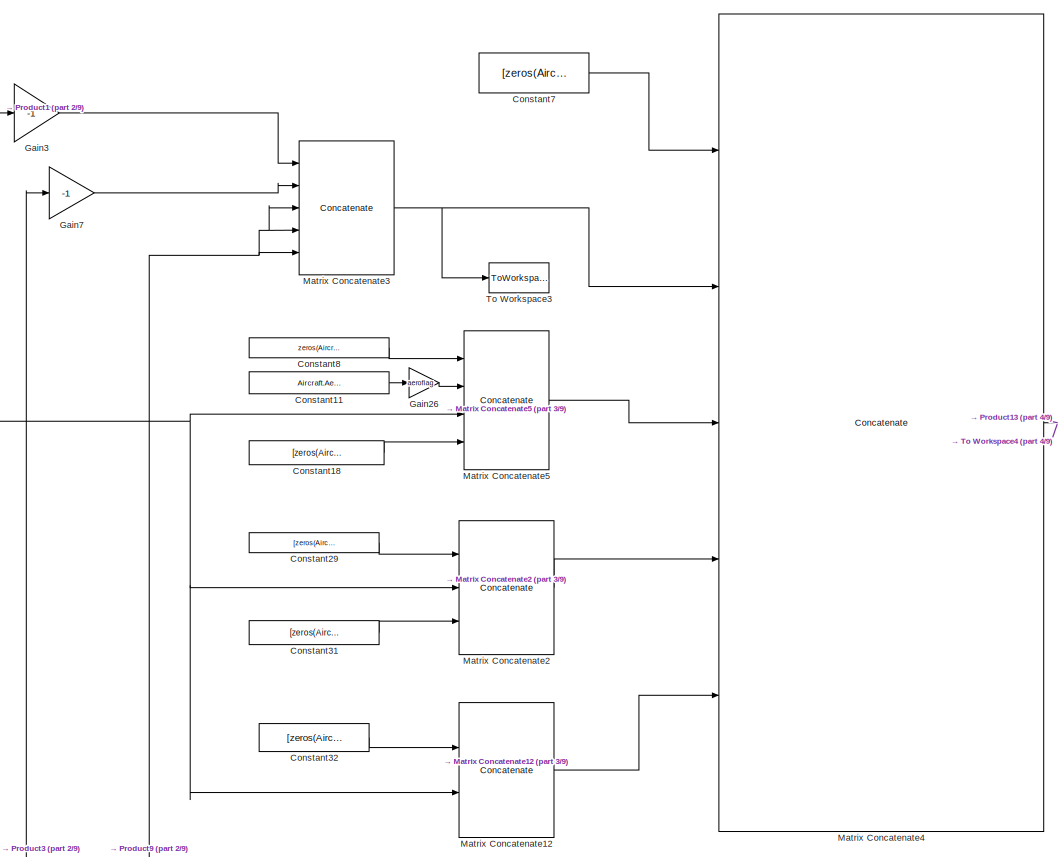
[diagram: root canvas - part 1/9, top center region]
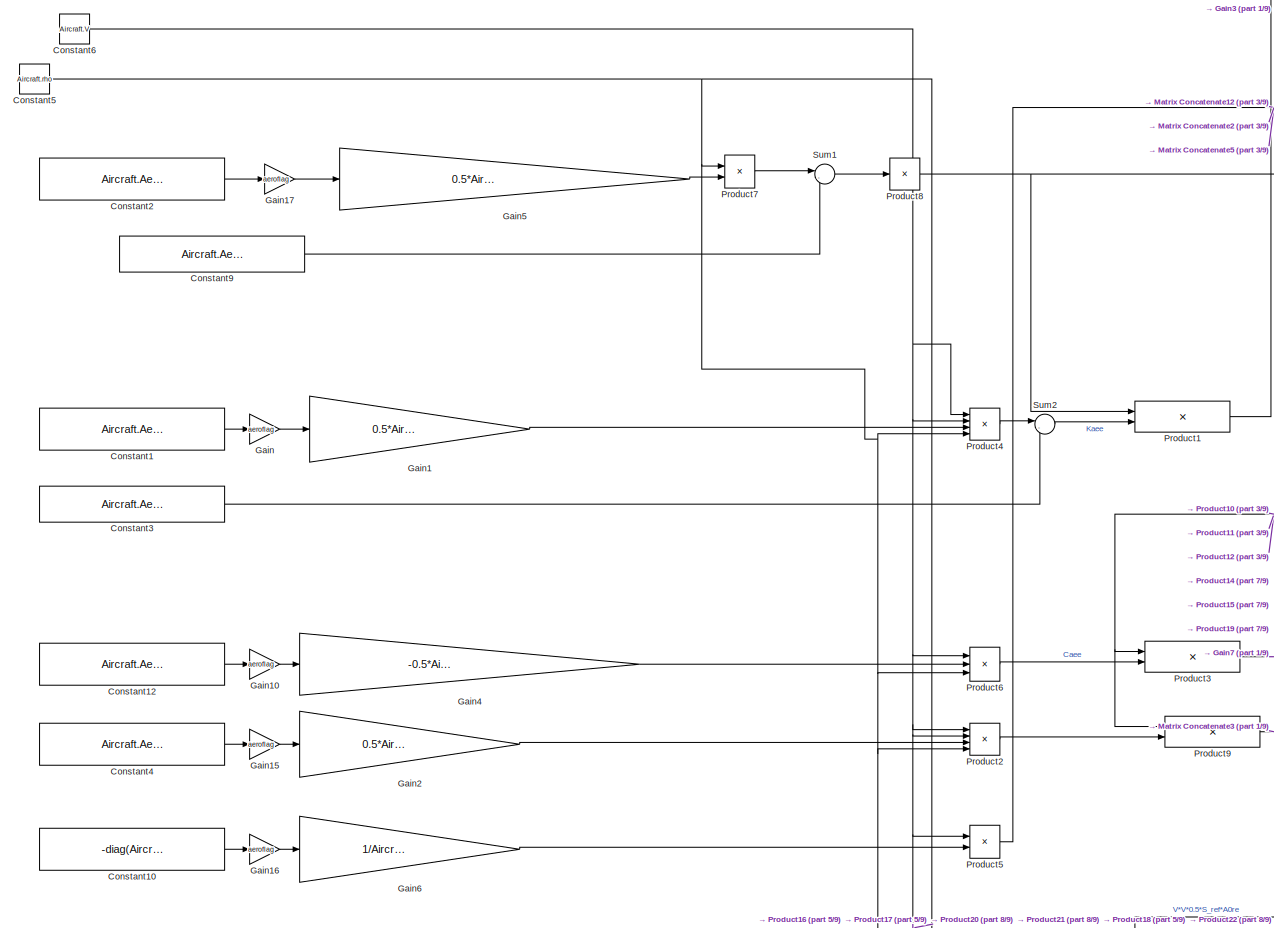
[diagram: root canvas - part 2/9, top left region]
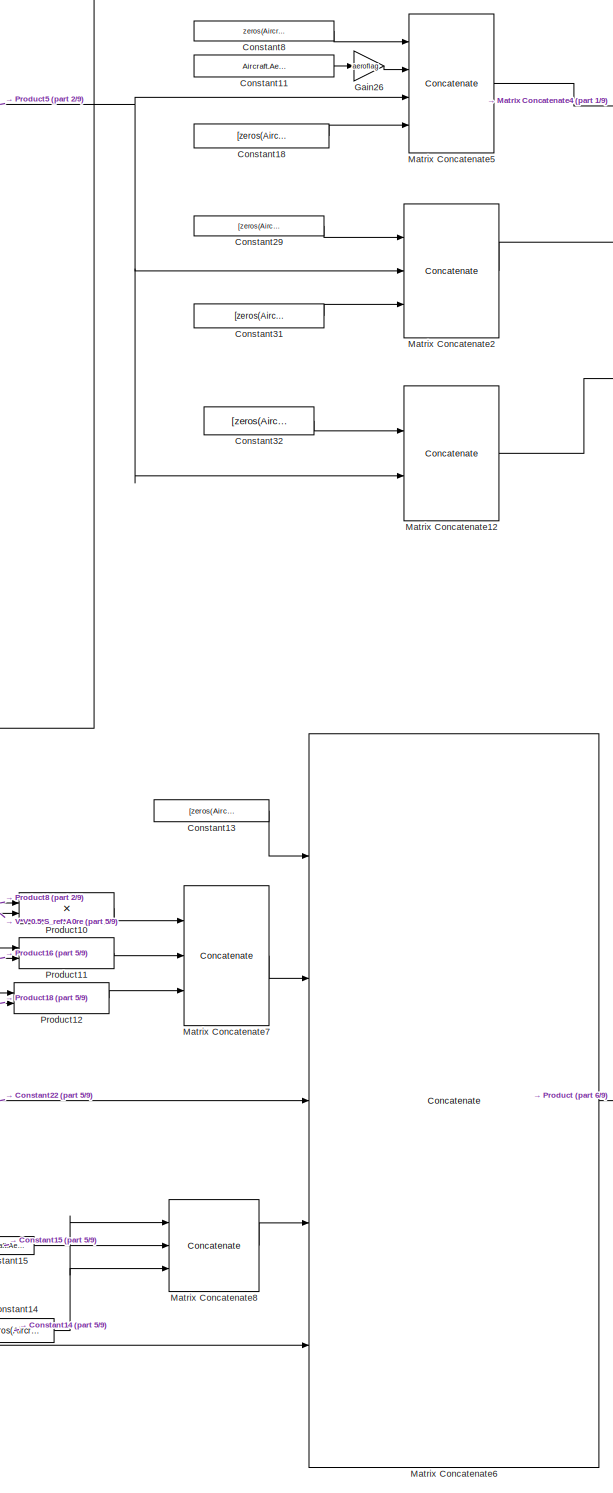
[diagram: root canvas - part 3/9, top center region]
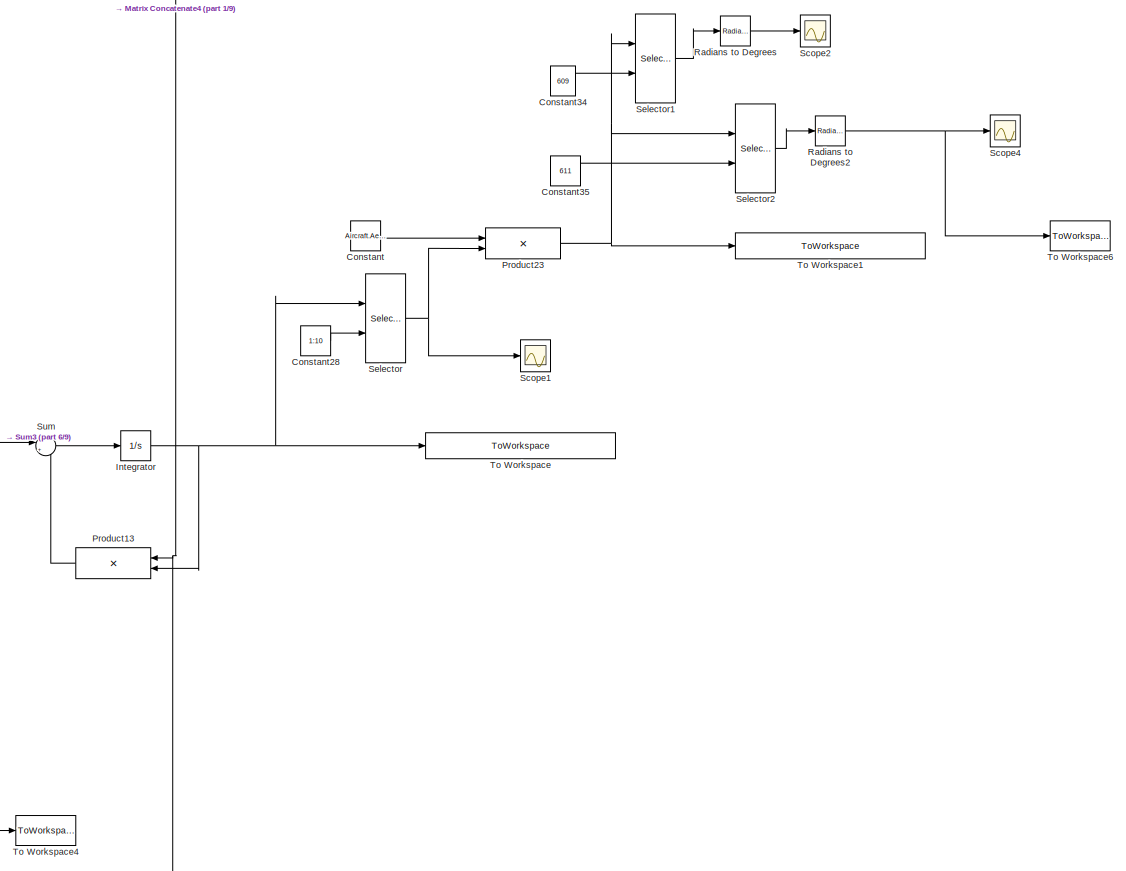
[diagram: root canvas - part 4/9, middle right region]
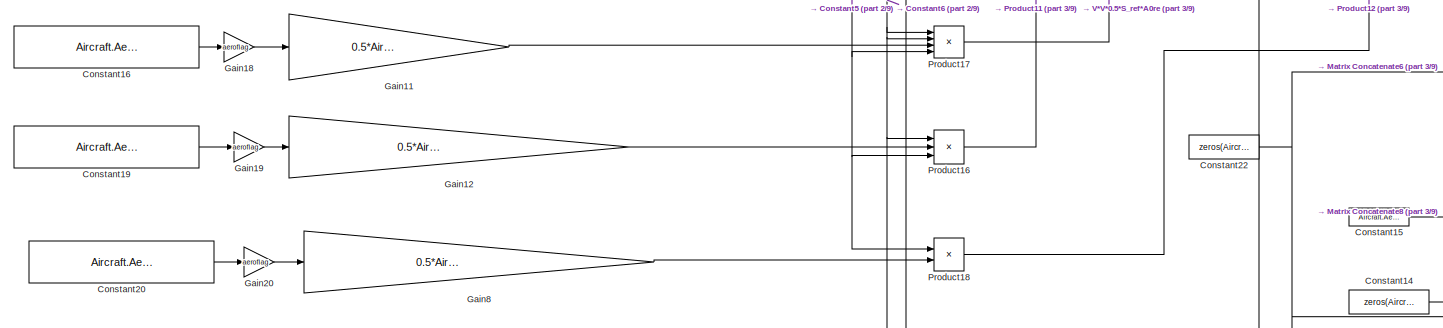
[diagram: root canvas - part 5/9, middle left region]
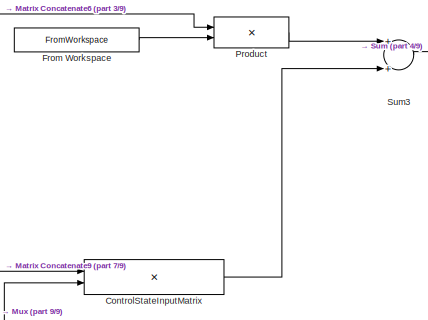
[diagram: root canvas - part 6/9, middle right region]
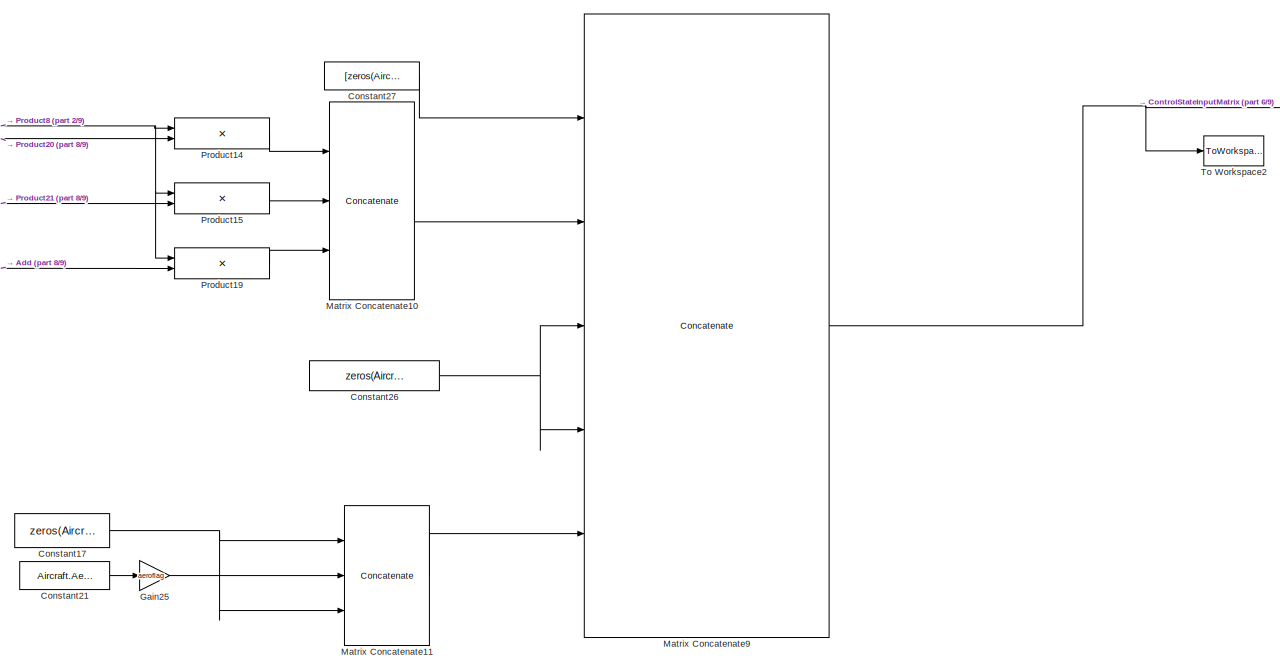
[diagram: root canvas - part 7/9, bottom center region]
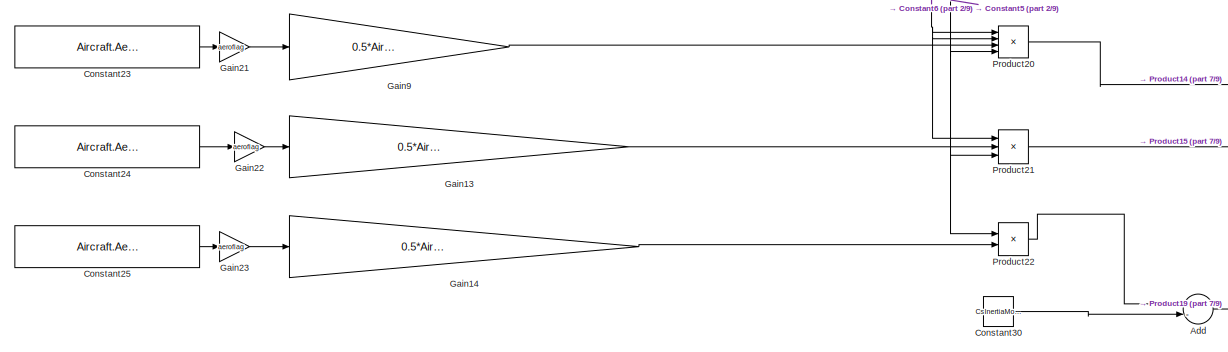
[diagram: root canvas - part 8/9, middle left region]
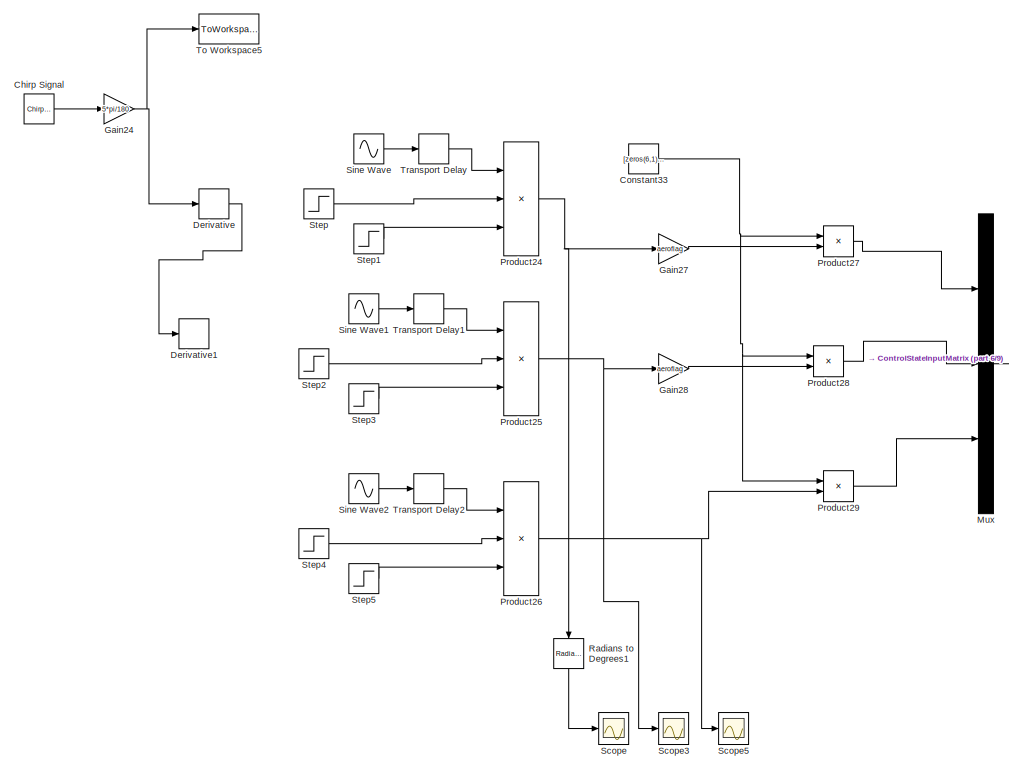
[diagram: root canvas - part 9/9, bottom center region]
MODEL slx_2d050b5bb379
KIND model
CONFIG AbsTol = 0.01
CONFIG FixedStep = 0.001
CONFIG MaxStep = auto
CONFIG MinStep = auto
CONFIG RelTol = 1e-12
CONFIG SampleTimeConstraint = Unconstrained
CONFIG Solver = ode3
CONFIG SolverMode = Auto
CONFIG SolverName = ode3
CONFIG StartTime = 0.0
CONFIG StopTime = 10
BLOCK [Sum] Add
  InputSameDT = off
  Inputs = +-
  OutDataTypeStr = Inherit: Inherit via internal rule
  Ports = [2, 1]
  SaturateOnIntegerOverflow = off
BLOCK [Reference] Chirp Signal  REF=simulink/Sources/Chirp Signal
  Ports = [0, 1]
  SourceBlock = simulink/Sources/Chirp Signal
  SourceType = chirp
BLOCK [Constant] Constant
  Value = Aircraft.AeroelasticSSM.modeshapes
BLOCK [Constant] Constant1
  Value = Aircraft.AeroelasticSSM.A0ee
BLOCK [Constant] Constant10
  Value = -diag(Aircraft.AeroelasticSSM.gamma)
BLOCK [Constant] Constant11
  Value = Aircraft.AeroelasticSSM.Eelastic
  VectorParams1D = off
BLOCK [Constant] Constant12
  Value = Aircraft.AeroelasticSSM.A1ee
BLOCK [Constant] Constant13
  Value = [zeros(Aircraft.AeroelasticSSM.nE,Aircraft.AeroelasticSSM.nR*3)]
BLOCK [Constant] Constant14
  Value = zeros(Aircraft.AeroelasticSSM.nL,Aircraft.AeroelasticSSM.nR)
BLOCK [Constant] Constant15
  Value = Aircraft.AeroelasticSSM.Erigid
  VectorParams1D = off
BLOCK [Constant] Constant16
  Value = Aircraft.AeroelasticSSM.A0re
BLOCK [Constant] Constant17
  Value = zeros(Aircraft.AeroelasticSSM.nL,Aircraft.AeroelasticSSM.nC)
BLOCK [Constant] Constant18
  Value = [zeros(Aircraft.AeroelasticSSM.nL,Aircraft.AeroelasticSSM.nL*2) ]
BLOCK [Constant] Constant19
  Value = Aircraft.AeroelasticSSM.A1re
BLOCK [Constant] Constant2
  Value = Aircraft.AeroelasticSSM.A2ee
BLOCK [Constant] Constant20
  Value = Aircraft.AeroelasticSSM.A2re
BLOCK [Constant] Constant21
  Value = Aircraft.AeroelasticSSM.Econtrol
  VectorParams1D = off
BLOCK [Constant] Constant22
  Value = zeros(Aircraft.AeroelasticSSM.nL,Aircraft.AeroelasticSSM.nR*3)
BLOCK [Constant] Constant23
  Value = Aircraft.AeroelasticSSM.A0ce
BLOCK [Constant] Constant24
  Value = Aircraft.AeroelasticSSM.A1ce
BLOCK [Constant] Constant25
  Value = Aircraft.AeroelasticSSM.A2ce
BLOCK [Constant] Constant26
  Value = zeros(Aircraft.AeroelasticSSM.nL,Aircraft.AeroelasticSSM.nC*3)
BLOCK [Constant] Constant27
  Value = [zeros(Aircraft.AeroelasticSSM.nE,Aircraft.AeroelasticSSM.nC*3)]
BLOCK [Constant] Constant28
  Value = 1:10
BLOCK [Constant] Constant29
  Value = [zeros(Aircraft.AeroelasticSSM.nL,Aircraft.AeroelasticSSM.nL+Aircraft.AeroelasticSSM.nE*2) ]
BLOCK [Constant] Constant3
  Value = Aircraft.AeroelasticSSM.Ks
BLOCK [Constant] Constant30
  Value = CsInertiaModal
BLOCK [Constant] Constant31
  Value = [zeros(Aircraft.AeroelasticSSM.nL,Aircraft.AeroelasticSSM.nL) ]
BLOCK [Constant] Constant32
  Value = [zeros(Aircraft.AeroelasticSSM.nL,Aircraft.AeroelasticSSM.nL*2+Aircraft.AeroelasticSSM.nE*2) ]
BLOCK [Constant] Constant33
  Value = [zeros(6,1); 1; zeros(4,1)]
BLOCK [Constant] Constant34
  Value = 609
BLOCK [Constant] Constant35
  Value = 611
BLOCK [Constant] Constant4
  Value = Aircraft.AeroelasticSSM.Delastic
BLOCK [Constant] Constant5
  Value = Aircraft.rho
BLOCK [Constant] Constant6
  Value = Aircraft.V
BLOCK [Constant] Constant7
  Value = [zeros(Aircraft.AeroelasticSSM.nE,Aircraft.AeroelasticSSM.nE) eye(Aircraft.AeroelasticSSM.nE,Aircraft.AeroelasticSSM.nE) zeros(Aircraft.AeroelasticSSM.nE,Aircraft.AeroelasticSSM.nL*3)]
BLOCK [Constant] Constant8
  Value = zeros(Aircraft.AeroelasticSSM.nL,Aircraft.AeroelasticSSM.nE)
BLOCK [Constant] Constant9
  Value = Aircraft.AeroelasticSSM.Ms
BLOCK [Product] ControlStateInputMatrix
  InputSameDT = off
  Multiplication = Matrix(*)
  OutDataTypeStr = Inherit: Inherit via internal rule
  Ports = [2, 1]
  RndMeth = Floor
  SaturateOnIntegerOverflow = off
BLOCK [Derivative] Derivative
BLOCK [Derivative] Derivative1
BLOCK [FromWorkspace] From Workspace
  OutputAfterFinalValue = Setting to zero
  SampleTime = 0
  VariableName = rigid_state
  ZeroCross = on
BLOCK [Gain] Gain
  Gain = aeroflag
  OutDataTypeStr = Inherit: Inherit via internal rule
  ParamDataTypeStr = Inherit: Inherit via internal rule
  SaturateOnIntegerOverflow = off
BLOCK [Gain] Gain1
  Gain = 0.5*Aircraft.Reference.S_ref
  OutDataTypeStr = Inherit: Inherit via internal rule
  ParamDataTypeStr = Inherit: Inherit via internal rule
  SaturateOnIntegerOverflow = off
BLOCK [Gain] Gain10
  Gain = aeroflag
  OutDataTypeStr = Inherit: Inherit via internal rule
  ParamDataTypeStr = Inherit: Inherit via internal rule
  SaturateOnIntegerOverflow = off
BLOCK [Gain] Gain11
  Gain = 0.5*Aircraft.Reference.S_ref
  OutDataTypeStr = Inherit: Inherit via internal rule
  ParamDataTypeStr = Inherit: Inherit via internal rule
  SaturateOnIntegerOverflow = off
BLOCK [Gain] Gain12
  Gain = 0.5*Aircraft.Reference.S_ref*Aircraft.AeroelasticSSM.bb
  OutDataTypeStr = Inherit: Inherit via internal rule
  ParamDataTypeStr = Inherit: Inherit via internal rule
  SaturateOnIntegerOverflow = off
BLOCK [Gain] Gain13
  Gain = 0.5*Aircraft.Reference.S_ref*Aircraft.AeroelasticSSM.bb
  OutDataTypeStr = Inherit: Inherit via internal rule
  ParamDataTypeStr = Inherit: Inherit via internal rule
  SaturateOnIntegerOverflow = off
BLOCK [Gain] Gain14
  Gain = 0.5*Aircraft.Reference.S_ref*Aircraft.AeroelasticSSM.bb^2
  OutDataTypeStr = Inherit: Inherit via internal rule
  ParamDataTypeStr = Inherit: Inherit via internal rule
  SaturateOnIntegerOverflow = off
BLOCK [Gain] Gain15
  Gain = aeroflag
  OutDataTypeStr = Inherit: Inherit via internal rule
  ParamDataTypeStr = Inherit: Inherit via internal rule
  SaturateOnIntegerOverflow = off
BLOCK [Gain] Gain16
  Gain = aeroflag
  OutDataTypeStr = Inherit: Inherit via internal rule
  ParamDataTypeStr = Inherit: Inherit via internal rule
  SaturateOnIntegerOverflow = off
BLOCK [Gain] Gain17
  Gain = aeroflag
  OutDataTypeStr = Inherit: Inherit via internal rule
  ParamDataTypeStr = Inherit: Inherit via internal rule
  SaturateOnIntegerOverflow = off
BLOCK [Gain] Gain18
  Gain = aeroflag
  OutDataTypeStr = Inherit: Inherit via internal rule
  ParamDataTypeStr = Inherit: Inherit via internal rule
  SaturateOnIntegerOverflow = off
BLOCK [Gain] Gain19
  Gain = aeroflag
  OutDataTypeStr = Inherit: Inherit via internal rule
  ParamDataTypeStr = Inherit: Inherit via internal rule
  SaturateOnIntegerOverflow = off
BLOCK [Gain] Gain2
  Gain = 0.5*Aircraft.Reference.S_ref
  OutDataTypeStr = Inherit: Inherit via internal rule
  ParamDataTypeStr = Inherit: Inherit via internal rule
  SaturateOnIntegerOverflow = off
BLOCK [Gain] Gain20
  Gain = aeroflag
  OutDataTypeStr = Inherit: Inherit via internal rule
  ParamDataTypeStr = Inherit: Inherit via internal rule
  SaturateOnIntegerOverflow = off
BLOCK [Gain] Gain21
  Gain = aeroflag
  OutDataTypeStr = Inherit: Inherit via internal rule
  ParamDataTypeStr = Inherit: Inherit via internal rule
  SaturateOnIntegerOverflow = off
BLOCK [Gain] Gain22
  Gain = aeroflag
  OutDataTypeStr = Inherit: Inherit via internal rule
  ParamDataTypeStr = Inherit: Inherit via internal rule
  SaturateOnIntegerOverflow = off
BLOCK [Gain] Gain23
  Gain = aeroflag
  OutDataTypeStr = Inherit: Inherit via internal rule
  ParamDataTypeStr = Inherit: Inherit via internal rule
  SaturateOnIntegerOverflow = off
BLOCK [Gain] Gain24
  Gain = 5*pi/180
  OutDataTypeStr = Inherit: Inherit via internal rule
  ParamDataTypeStr = Inherit: Inherit via internal rule
  SaturateOnIntegerOverflow = off
BLOCK [Gain] Gain25
  Gain = aeroflag
  OutDataTypeStr = Inherit: Inherit via internal rule
  ParamDataTypeStr = Inherit: Inherit via internal rule
  SaturateOnIntegerOverflow = off
BLOCK [Gain] Gain26
  Gain = aeroflag
  OutDataTypeStr = Inherit: Inherit via internal rule
  ParamDataTypeStr = Inherit: Inherit via internal rule
  SaturateOnIntegerOverflow = off
BLOCK [Gain] Gain27
  Gain = aeroflag
  OutDataTypeStr = Inherit: Inherit via internal rule
  ParamDataTypeStr = Inherit: Inherit via internal rule
  SaturateOnIntegerOverflow = off
BLOCK [Gain] Gain28
  Gain = aeroflag
  OutDataTypeStr = Inherit: Inherit via internal rule
  ParamDataTypeStr = Inherit: Inherit via internal rule
  SaturateOnIntegerOverflow = off
BLOCK [Gain] Gain3
  Gain = -1
  OutDataTypeStr = Inherit: Inherit via internal rule
  ParamDataTypeStr = Inherit: Inherit via internal rule
  SaturateOnIntegerOverflow = off
BLOCK [Gain] Gain4
  Gain = -0.5*Aircraft.Reference.S_ref*Aircraft.AeroelasticSSM.bb
  OutDataTypeStr = Inherit: Inherit via internal rule
  ParamDataTypeStr = Inherit: Inherit via internal rule
  SaturateOnIntegerOverflow = off
BLOCK [Gain] Gain5
  Gain = 0.5*Aircraft.Reference.S_ref*Aircraft.AeroelasticSSM.bb^2
  OutDataTypeStr = Inherit: Inherit via internal rule
  ParamDataTypeStr = Inherit: Inherit via internal rule
  SaturateOnIntegerOverflow = off
BLOCK [Gain] Gain6
  Gain = 1/Aircraft.AeroelasticSSM.bb
  OutDataTypeStr = Inherit: Inherit via internal rule
  ParamDataTypeStr = Inherit: Inherit via internal rule
  SaturateOnIntegerOverflow = off
BLOCK [Gain] Gain7
  Gain = -1
  OutDataTypeStr = Inherit: Inherit via internal rule
  ParamDataTypeStr = Inherit: Inherit via internal rule
  SaturateOnIntegerOverflow = off
BLOCK [Gain] Gain8
  Gain = 0.5*Aircraft.Reference.S_ref*Aircraft.AeroelasticSSM.bb^2
  OutDataTypeStr = Inherit: Inherit via internal rule
  ParamDataTypeStr = Inherit: Inherit via internal rule
  SaturateOnIntegerOverflow = off
BLOCK [Gain] Gain9
  Gain = 0.5*Aircraft.Reference.S_ref
  OutDataTypeStr = Inherit: Inherit via internal rule
  ParamDataTypeStr = Inherit: Inherit via internal rule
  SaturateOnIntegerOverflow = off
BLOCK [Integrator] Integrator
  Ports = [1, 1]
BLOCK [Concatenate] Matrix Concatenate10
  ConcatenateDimension = 2
  Mode = Multidimensional array
  NumInputs = 3
  Ports = [3, 1]
BLOCK [Concatenate] Matrix Concatenate11
  ConcatenateDimension = 2
  Mode = Multidimensional array
  NumInputs = 3
  Ports = [3, 1]
BLOCK [Concatenate] Matrix Concatenate12
  ConcatenateDimension = 2
  Mode = Multidimensional array
  Ports = [2, 1]
BLOCK [Concatenate] Matrix Concatenate2
  ConcatenateDimension = 2
  Mode = Multidimensional array
  NumInputs = 3
  Ports = [3, 1]
BLOCK [Concatenate] Matrix Concatenate3
  ConcatenateDimension = 2
  Mode = Multidimensional array
  NumInputs = 5
  Ports = [5, 1]
BLOCK [Concatenate] Matrix Concatenate4
  Mode = Multidimensional array
  NumInputs = 5
  Ports = [5, 1]
BLOCK [Concatenate] Matrix Concatenate5
  ConcatenateDimension = 2
  Mode = Multidimensional array
  NumInputs = 4
  Ports = [4, 1]
BLOCK [Concatenate] Matrix Concatenate6
  Mode = Multidimensional array
  NumInputs = 5
  Ports = [5, 1]
BLOCK [Concatenate] Matrix Concatenate7
  ConcatenateDimension = 2
  Mode = Multidimensional array
  NumInputs = 3
  Ports = [3, 1]
BLOCK [Concatenate] Matrix Concatenate8
  ConcatenateDimension = 2
  Mode = Multidimensional array
  NumInputs = 3
  Ports = [3, 1]
BLOCK [Concatenate] Matrix Concatenate9
  Mode = Multidimensional array
  NumInputs = 5
  Ports = [5, 1]
BLOCK [Mux] Mux
  DisplayOption = bar
  Inputs = 3
  Ports = [3, 1]
BLOCK [Product] Product
  InputSameDT = off
  Multiplication = Matrix(*)
  OutDataTypeStr = Inherit: Inherit via internal rule
  Ports = [2, 1]
  RndMeth = Floor
  SaturateOnIntegerOverflow = off
BLOCK [Product] Product1
  InputSameDT = off
  Multiplication = Matrix(*)
  OutDataTypeStr = Inherit: Inherit via internal rule
  Ports = [2, 1]
  SaturateOnIntegerOverflow = off
BLOCK [Product] Product10
  InputSameDT = off
  Multiplication = Matrix(*)
  OutDataTypeStr = Inherit: Inherit via internal rule
  Ports = [2, 1]
  SaturateOnIntegerOverflow = off
BLOCK [Product] Product11
  InputSameDT = off
  Multiplication = Matrix(*)
  OutDataTypeStr = Inherit: Inherit via internal rule
  Ports = [2, 1]
  SaturateOnIntegerOverflow = off
BLOCK [Product] Product12
  InputSameDT = off
  Multiplication = Matrix(*)
  OutDataTypeStr = Inherit: Inherit via internal rule
  Ports = [2, 1]
  SaturateOnIntegerOverflow = off
BLOCK [Product] Product13
  InputSameDT = off
  Multiplication = Matrix(*)
  OutDataTypeStr = Inherit: Inherit via internal rule
  Ports = [2, 1]
  RndMeth = Floor
  SaturateOnIntegerOverflow = off
BLOCK [Product] Product14
  InputSameDT = off
  Multiplication = Matrix(*)
  OutDataTypeStr = Inherit: Inherit via internal rule
  Ports = [2, 1]
  SaturateOnIntegerOverflow = off
BLOCK [Product] Product15
  InputSameDT = off
  Multiplication = Matrix(*)
  OutDataTypeStr = Inherit: Inherit via internal rule
  Ports = [2, 1]
  SaturateOnIntegerOverflow = off
BLOCK [Product] Product16
  InputSameDT = off
  Inputs = 3
  OutDataTypeStr = Inherit: Inherit via internal rule
  Ports = [3, 1]
  SaturateOnIntegerOverflow = off
BLOCK [Product] Product17
  InputSameDT = off
  Inputs = 4
  OutDataTypeStr = Inherit: Inherit via internal rule
  Ports = [4, 1]
  SaturateOnIntegerOverflow = off
BLOCK [Product] Product18
  InputSameDT = off
  OutDataTypeStr = Inherit: Inherit via internal rule
  Ports = [2, 1]
  SaturateOnIntegerOverflow = off
BLOCK [Product] Product19
  InputSameDT = off
  Multiplication = Matrix(*)
  OutDataTypeStr = Inherit: Inherit via internal rule
  Ports = [2, 1]
  SaturateOnIntegerOverflow = off
BLOCK [Product] Product2
  InputSameDT = off
  Inputs = 4
  OutDataTypeStr = Inherit: Inherit via internal rule
  Ports = [4, 1]
  SaturateOnIntegerOverflow = off
BLOCK [Product] Product20
  InputSameDT = off
  Inputs = 4
  OutDataTypeStr = Inherit: Inherit via internal rule
  Ports = [4, 1]
  SaturateOnIntegerOverflow = off
BLOCK [Product] Product21
  InputSameDT = off
  Inputs = 3
  OutDataTypeStr = Inherit: Inherit via internal rule
  Ports = [3, 1]
  SaturateOnIntegerOverflow = off
BLOCK [Product] Product22
  InputSameDT = off
  OutDataTypeStr = Inherit: Inherit via internal rule
  Ports = [2, 1]
  SaturateOnIntegerOverflow = off
BLOCK [Product] Product23
  InputSameDT = off
  Multiplication = Matrix(*)
  OutDataTypeStr = Inherit: Inherit via internal rule
  Ports = [2, 1]
  RndMeth = Floor
  SaturateOnIntegerOverflow = off
BLOCK [Product] Product24
  InputSameDT = off
  Inputs = 3
  OutDataTypeStr = Inherit: Inherit via internal rule
  Ports = [3, 1]
  RndMeth = Floor
  SaturateOnIntegerOverflow = off
BLOCK [Product] Product25
  InputSameDT = off
  Inputs = 3
  OutDataTypeStr = Inherit: Inherit via internal rule
  Ports = [3, 1]
  RndMeth = Floor
  SaturateOnIntegerOverflow = off
BLOCK [Product] Product26
  InputSameDT = off
  Inputs = 3
  OutDataTypeStr = Inherit: Inherit via internal rule
  Ports = [3, 1]
  RndMeth = Floor
  SaturateOnIntegerOverflow = off
BLOCK [Product] Product27
  InputSameDT = off
  OutDataTypeStr = Inherit: Inherit via internal rule
  Ports = [2, 1]
  RndMeth = Floor
  SaturateOnIntegerOverflow = off
BLOCK [Product] Product28
  InputSameDT = off
  OutDataTypeStr = Inherit: Inherit via internal rule
  Ports = [2, 1]
  RndMeth = Floor
  SaturateOnIntegerOverflow = off
BLOCK [Product] Product29
  InputSameDT = off
  OutDataTypeStr = Inherit: Inherit via internal rule
  Ports = [2, 1]
  RndMeth = Floor
  SaturateOnIntegerOverflow = off
BLOCK [Product] Product3
  InputSameDT = off
  Multiplication = Matrix(*)
  OutDataTypeStr = Inherit: Inherit via internal rule
  Ports = [2, 1]
  SaturateOnIntegerOverflow = off
BLOCK [Product] Product4
  InputSameDT = off
  Inputs = 4
  OutDataTypeStr = Inherit: Inherit via internal rule
  Ports = [4, 1]
  SaturateOnIntegerOverflow = off
BLOCK [Product] Product5
  InputSameDT = off
  OutDataTypeStr = Inherit: Inherit via internal rule
  Ports = [2, 1]
  SaturateOnIntegerOverflow = off
BLOCK [Product] Product6
  InputSameDT = off
  Inputs = 3
  OutDataTypeStr = Inherit: Inherit via internal rule
  Ports = [3, 1]
  SaturateOnIntegerOverflow = off
BLOCK [Product] Product7
  InputSameDT = off
  OutDataTypeStr = Inherit: Inherit via internal rule
  Ports = [2, 1]
  SaturateOnIntegerOverflow = off
BLOCK [Product] Product8
  InputSameDT = off
  Inputs = /
  Multiplication = Matrix(*)
  OutDataTypeStr = Inherit: Inherit via internal rule
  Ports = [1, 1]
  RndMeth = Floor
  SaturateOnIntegerOverflow = off
BLOCK [Product] Product9
  InputSameDT = off
  Multiplication = Matrix(*)
  OutDataTypeStr = Inherit: Inherit via internal rule
  Ports = [2, 1]
  SaturateOnIntegerOverflow = off
BLOCK [Reference] Radians to Degrees  REF=simulink_extras/Transformations/Radians
to Degrees
  Ports = [1, 1]
  SourceBlock = simulink_extras/Transformations/Radians\nto Degrees
  SourceType = RadiansToDegrees
BLOCK [Reference] Radians to Degrees1  REF=simulink_extras/Transformations/Radians
to Degrees
  Ports = [1, 1]
  SourceBlock = simulink_extras/Transformations/Radians\nto Degrees
  SourceType = RadiansToDegrees
BLOCK [Reference] Radians to Degrees2  REF=simulink_extras/Transformations/Radians
to Degrees
  Ports = [1, 1]
  SourceBlock = simulink_extras/Transformations/Radians\nto Degrees
  SourceType = RadiansToDegrees
BLOCK [Scope] Scope
  Ports = [1]
  ScopeSpecificationString = Simulink.scopes.TimeScopeBlockCfg('CurrentConfiguration', extmgr.ConfigurationSet(extmgr.Configuration('Core','General UI',true),extmgr.Configuration('Core','Source UI',true),extmgr.Configuration('Sources','WiredSimulink',true,'DataLoggingVariableName','ScopeData2'),extmgr.Configuration('Visuals','Time Domain',true,'SerializedDisplays',{struct('MinYLimReal','-6.25','MaxYLimReal','6.25','YLabelReal...<+1460ch>
BLOCK [Scope] Scope1
  Ports = [1]
  ScopeSpecificationString = Simulink.scopes.TimeScopeBlockCfg('CurrentConfiguration', extmgr.ConfigurationSet(extmgr.Configuration('Core','General UI',true),extmgr.Configuration('Core','Source UI',true),extmgr.Configuration('Sources','WiredSimulink',true,'DataLoggingVariableName','ScopeData1'),extmgr.Configuration('Visuals','Time Domain',true,'SerializedDisplays',{struct('MinYLimReal','-0.000006','MaxYLimReal','0.000006','YL...<+1541ch>
BLOCK [Scope] Scope2
  Ports = [1]
  ScopeSpecificationString = Simulink.scopes.TimeScopeBlockCfg('CurrentConfiguration', extmgr.ConfigurationSet(extmgr.Configuration('Core','General UI',true),extmgr.Configuration('Core','Source UI',true),extmgr.Configuration('Sources','WiredSimulink',true),extmgr.Configuration('Visuals','Time Domain',true,'SerializedDisplays',{struct('MinYLimReal','-0.00035','MaxYLimReal','0.00034','YLabelReal','','MinYLimMag','0.00000','MaxY...<+1413ch>
BLOCK [Scope] Scope3
  Ports = [1]
  ScopeSpecificationString = Simulink.scopes.TimeScopeBlockCfg('CurrentConfiguration', extmgr.ConfigurationSet(extmgr.Configuration('Core','General UI',true),extmgr.Configuration('Core','Source UI',true),extmgr.Configuration('Sources','WiredSimulink',true,'DataLoggingVariableName','ScopeData3'),extmgr.Configuration('Visuals','Time Domain',true,'SerializedDisplays',{struct('MinYLimReal','-1.1244','MaxYLimReal','7.82887','YLabe...<+1440ch>
BLOCK [Scope] Scope4
  Ports = [1]
  ScopeSpecificationString = Simulink.scopes.TimeScopeBlockCfg('CurrentConfiguration', extmgr.ConfigurationSet(extmgr.Configuration('Core','General UI',true),extmgr.Configuration('Core','Source UI',true),extmgr.Configuration('Sources','WiredSimulink',true,'DataLoggingVariableName','ScopeData1'),extmgr.Configuration('Visuals','Time Domain',true,'SerializedDisplays',{struct('MinYLimReal','-0.10738','MaxYLimReal','0.10866','YLab...<+1478ch>
BLOCK [Scope] Scope5
  Ports = [1]
  ScopeSpecificationString = Simulink.scopes.TimeScopeBlockCfg('CurrentConfiguration', extmgr.ConfigurationSet(extmgr.Configuration('Core','General UI',true),extmgr.Configuration('Core','Source UI',true),extmgr.Configuration('Sources','WiredSimulink',true,'DataLoggingVariableName','ScopeData5'),extmgr.Configuration('Visuals','Time Domain',true,'SerializedDisplays',{struct('MinYLimReal','-4.30643','MaxYLimReal','4.30643','YLab...<+1468ch>
BLOCK [Selector] Selector
  IndexOptions = Index vector (port)
  Indices = [1 3]
  InputPortWidth = 56
  OutputSizes = 1
  Ports = [2, 1]
BLOCK [Selector] Selector1
  IndexOptions = Index vector (port)
  Indices = [1 3]
  InputPortWidth = 612
  OutputSizes = 1
  Ports = [2, 1]
BLOCK [Selector] Selector2
  IndexOptions = Index vector (port)
  Indices = [1 3]
  InputPortWidth = 612
  OutputSizes = 1
  Ports = [2, 1]
BLOCK [Sin] Sine Wave
  Amplitude = delta_amp
  Frequency = delta_freq*2*pi
  Ports = [0, 1]
  SampleTime = 0
BLOCK [Sin] Sine Wave1
  Amplitude = delta_freq*2*pi*delta_amp
  Frequency = delta_freq*2*pi
  Phase = pi/2
  Ports = [0, 1]
  SampleTime = 0
BLOCK [Sin] Sine Wave2
  Amplitude = delta_freq*2*pi*delta_amp*delta_freq*2*pi
  Frequency = delta_freq*2*pi
  Phase = pi
  Ports = [0, 1]
  SampleTime = 0
BLOCK [Step] Step
  SampleTime = 0
  Time = t_start
BLOCK [Step] Step1
  After = 0
  Before = 1
  SampleTime = 0
  Time = t_start+n_sines/delta_freq
BLOCK [Step] Step2
  SampleTime = 0
  Time = t_start
BLOCK [Step] Step3
  After = 0
  Before = 1
  SampleTime = 0
  Time = t_start+n_sines/delta_freq
BLOCK [Step] Step4
  SampleTime = 0
  Time = t_start
BLOCK [Step] Step5
  After = 0
  Before = 1
  SampleTime = 0
  Time = t_start+n_sines/delta_freq
BLOCK [Sum] Sum
  IconShape = round
  InputSameDT = off
  Inputs = |++
  OutDataTypeStr = Inherit: Inherit via internal rule
  Ports = [2, 1]
  SaturateOnIntegerOverflow = off
BLOCK [Sum] Sum1
  IconShape = round
  InputSameDT = off
  Inputs = |-+
  OutDataTypeStr = Inherit: Inherit via internal rule
  Ports = [2, 1]
  SaturateOnIntegerOverflow = off
BLOCK [Sum] Sum2
  IconShape = round
  InputSameDT = off
  Inputs = |-+
  OutDataTypeStr = Inherit: Inherit via internal rule
  Ports = [2, 1]
  SaturateOnIntegerOverflow = off
BLOCK [Sum] Sum3
  InputSameDT = off
  OutDataTypeStr = Inherit: Inherit via internal rule
  Ports = [2, 1]
  SaturateOnIntegerOverflow = off
BLOCK [ToWorkspace] To Workspace
  MaxDataPoints = inf
  Ports = [1]
  SampleTime = -1
  SaveFormat = Timeseries
  VariableName = generalized_states_new
BLOCK [ToWorkspace] To Workspace1
  MaxDataPoints = inf
  Ports = [1]
  SampleTime = -1
  SaveFormat = Timeseries
  VariableName = physical_states
BLOCK [ToWorkspace] To Workspace2
  FixptAsFi = on
  MaxDataPoints = inf
  Ports = [1]
  SampleTime = -1
  Save2DSignal = 3-D array (concatenate along third dimension)
  SaveFormat = Timeseries
  VariableName = bceout
BLOCK [ToWorkspace] To Workspace3
  FixptAsFi = on
  MaxDataPoints = inf
  Ports = [1]
  SampleTime = -1
  Save2DSignal = 3-D array (concatenate along third dimension)
  SaveFormat = Timeseries
  VariableName = aseeout
BLOCK [ToWorkspace] To Workspace4
  FixptAsFi = on
  MaxDataPoints = inf
  Ports = [1]
  SampleTime = -1
  Save2DSignal = 3-D array (concatenate along third dimension)
  SaveFormat = Timeseries
  VariableName = debug
BLOCK [ToWorkspace] To Workspace5
  FixptAsFi = on
  MaxDataPoints = inf
  Ports = [1]
  SampleTime = -1
  Save2DSignal = 3-D array (concatenate along third dimension)
  SaveFormat = Timeseries
  VariableName = simout
BLOCK [ToWorkspace] To Workspace6
  FixptAsFi = on
  MaxDataPoints = inf
  Ports = [1]
  SampleTime = -1
  Save2DSignal = 3-D array (concatenate along third dimension)
  SaveFormat = Timeseries
  VariableName = simout1
BLOCK [TransportDelay] Transport Delay
  DelayTime = t_start
  Ports = [1, 1]
BLOCK [TransportDelay] Transport Delay1
  DelayTime = t_start
  Ports = [1, 1]
BLOCK [TransportDelay] Transport Delay2
  DelayTime = t_start
  Ports = [1, 1]
LINE Add:1 -> Product19:2
LINE Chirp Signal:1 -> Gain24:1
LINE Constant10:1 -> Gain16:1
LINE Constant11:1 -> Gain26:1
LINE Constant12:1 -> Gain10:1
LINE Constant13:1 -> Matrix Concatenate6:1
NET Constant14:1 -> Matrix Concatenate8:1, Matrix Concatenate8:3
LINE Constant15:1 -> Matrix Concatenate8:2
LINE Constant16:1 -> Gain18:1
NET Constant17:1 -> Matrix Concatenate11:1, Matrix Concatenate11:3
LINE Constant18:1 -> Matrix Concatenate5:4
LINE Constant19:1 -> Gain19:1
LINE Constant1:1 -> Gain:1
LINE Constant20:1 -> Gain20:1
LINE Constant21:1 -> Gain25:1
NET Constant22:1 -> Matrix Concatenate6:3, Matrix Concatenate6:5
LINE Constant23:1 -> Gain21:1
LINE Constant24:1 -> Gain22:1
LINE Constant25:1 -> Gain23:1
NET Constant26:1 -> Matrix Concatenate9:3, Matrix Concatenate9:4
LINE Constant27:1 -> Matrix Concatenate9:1
LINE Constant28:1 -> Selector:2
LINE Constant29:1 -> Matrix Concatenate2:1
LINE Constant2:1 -> Gain17:1
LINE Constant30:1 -> Add:2
LINE Constant31:1 -> Matrix Concatenate2:3
LINE Constant32:1 -> Matrix Concatenate12:1
NET Constant33:1 -> Product27:1, Product28:1, Product29:1
LINE Constant34:1 -> Selector1:2
LINE Constant35:1 -> Selector2:2
LINE Constant3:1 -> Sum2:2
LINE Constant4:1 -> Gain15:1
NET Constant5:1 -> Product16:3, Product17:4, Product18:1, Product20:4, Product21:3, Product22:1, Product2:4, Product4:4, Product6:3, Product7:1
NET Constant6:1 -> Product16:1, Product17:1, Product17:2, Product20:1, Product20:2, Product21:1, Product2:1, Product2:2, Product4:1, Product4:2, Product5:1, Product6:1
LINE Constant7:1 -> Matrix Concatenate4:1
LINE Constant8:1 -> Matrix Concatenate5:1
LINE Constant9:1 -> Sum1:2
LINE Constant:1 -> Product23:1
LINE ControlStateInputMatrix:1 -> Sum3:2
LINE Derivative:1 -> Derivative1:1
LINE From Workspace:1 -> Product:2
LINE Gain10:1 -> Gain4:1
LINE Gain11:1 -> Product17:3
LINE Gain12:1 -> Product16:2
LINE Gain13:1 -> Product21:2
LINE Gain14:1 -> Product22:2
LINE Gain15:1 -> Gain2:1
LINE Gain16:1 -> Gain6:1
LINE Gain17:1 -> Gain5:1
LINE Gain18:1 -> Gain11:1
LINE Gain19:1 -> Gain12:1
LINE Gain1:1 -> Product4:3
LINE Gain20:1 -> Gain8:1
LINE Gain21:1 -> Gain9:1
LINE Gain22:1 -> Gain13:1
LINE Gain23:1 -> Gain14:1
NET Gain24:1 -> Derivative:1, To Workspace5:1
LINE Gain25:1 -> Matrix Concatenate11:2
LINE Gain26:1 -> Matrix Concatenate5:2
LINE Gain27:1 -> Product27:2
LINE Gain28:1 -> Product28:2
LINE Gain2:1 -> Product2:3
LINE Gain3:1 -> Matrix Concatenate3:1
LINE Gain4:1 -> Product6:2
LINE Gain5:1 -> Product7:2
LINE Gain6:1 -> Product5:2
LINE Gain7:1 -> Matrix Concatenate3:2
LINE Gain8:1 -> Product18:2
LINE Gain9:1 -> Product20:3
LINE Gain:1 -> Gain1:1
NET Integrator:1 -> Product13:2, Selector:1, To Workspace:1
LINE Matrix Concatenate10:1 -> Matrix Concatenate9:2
LINE Matrix Concatenate11:1 -> Matrix Concatenate9:5
LINE Matrix Concatenate12:1 -> Matrix Concatenate4:5
LINE Matrix Concatenate2:1 -> Matrix Concatenate4:4
NET Matrix Concatenate3:1 -> Matrix Concatenate4:2, To Workspace3:1
NET Matrix Concatenate4:1 -> Product13:1, To Workspace4:1
LINE Matrix Concatenate5:1 -> Matrix Concatenate4:3
LINE Matrix Concatenate6:1 -> Product:1
LINE Matrix Concatenate7:1 -> Matrix Concatenate6:2
LINE Matrix Concatenate8:1 -> Matrix Concatenate6:4
NET Matrix Concatenate9:1 -> ControlStateInputMatrix:1, To Workspace2:1
LINE Mux:1 -> ControlStateInputMatrix:2
LINE Product10:1 -> Matrix Concatenate7:1
LINE Product11:1 -> Matrix Concatenate7:2
LINE Product12:1 -> Matrix Concatenate7:3
LINE Product13:1 -> Sum:2
LINE Product14:1 -> Matrix Concatenate10:1
LINE Product15:1 -> Matrix Concatenate10:2
LINE Product16:1 -> Product11:2
LINE Product17:1 -> Product10:2
LINE Product18:1 -> Product12:2
LINE Product19:1 -> Matrix Concatenate10:3
LINE Product1:1 -> Gain3:1
LINE Product20:1 -> Product14:2
LINE Product21:1 -> Product15:2
LINE Product22:1 -> Add:1
NET Product23:1 -> Selector1:1, Selector2:1, To Workspace1:1
NET Product24:1 -> Gain27:1, Radians to Degrees1:1
NET Product25:1 -> Gain28:1, Scope3:1
NET Product26:1 -> Product29:2, Scope5:1
LINE Product27:1 -> Mux:1
LINE Product28:1 -> Mux:2
LINE Product29:1 -> Mux:3
LINE Product2:1 -> Product9:2
LINE Product3:1 -> Gain7:1
LINE Product4:1 -> Sum2:1
NET Product5:1 -> Matrix Concatenate12:2, Matrix Concatenate2:2, Matrix Concatenate5:3
LINE Product6:1 -> Product3:2
LINE Product7:1 -> Sum1:1
NET Product8:1 -> Product10:1, Product11:1, Product12:1, Product14:1, Product15:1, Product19:1, Product1:1, Product3:1, Product9:1
NET Product9:1 -> Matrix Concatenate3:3, Matrix Concatenate3:4, Matrix Concatenate3:5
LINE Product:1 -> Sum3:1
LINE Radians to Degrees1:1 -> Scope:1
NET Radians to Degrees2:1 -> Scope4:1, To Workspace6:1
LINE Radians to Degrees:1 -> Scope2:1
LINE Selector1:1 -> Radians to Degrees:1
LINE Selector2:1 -> Radians to Degrees2:1
NET Selector:1 -> Product23:2, Scope1:1
LINE Sine Wave1:1 -> Transport Delay1:1
LINE Sine Wave2:1 -> Transport Delay2:1
LINE Sine Wave:1 -> Transport Delay:1
LINE Step1:1 -> Product24:3
LINE Step2:1 -> Product25:2
LINE Step3:1 -> Product25:3
LINE Step4:1 -> Product26:2
LINE Step5:1 -> Product26:3
LINE Step:1 -> Product24:2
LINE Sum1:1 -> Product8:1
LINE Sum2:1 -> Product1:2
LINE Sum3:1 -> Sum:1
LINE Sum:1 -> Integrator:1
LINE Transport Delay1:1 -> Product25:1
LINE Transport Delay2:1 -> Product26:1
LINE Transport Delay:1 -> Product24:1
note: NET lines group one-source signal fan-out (src -> all destinations, sorted); 1:1 wires keep LINE
